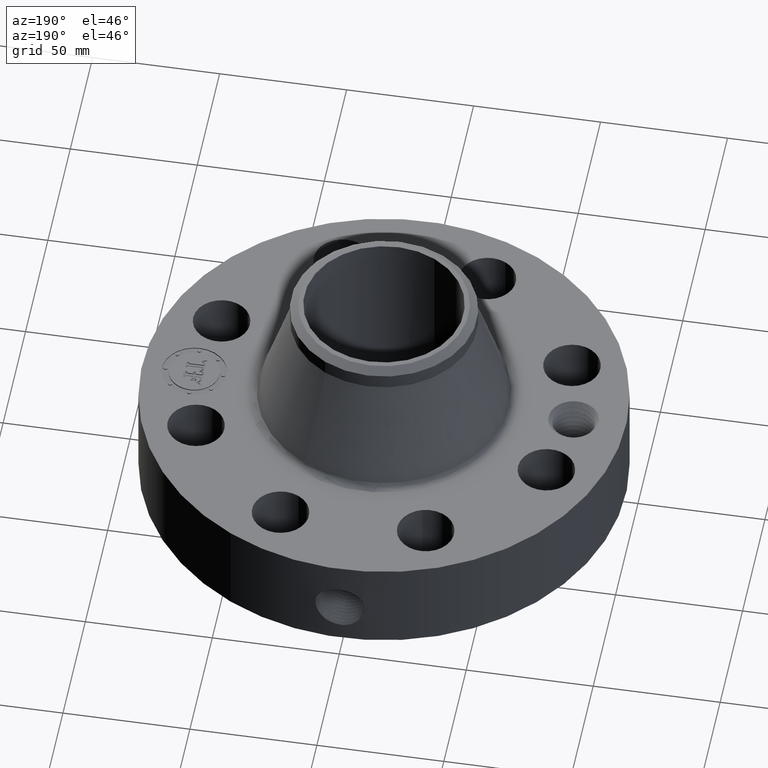
[diagram: clean part render]
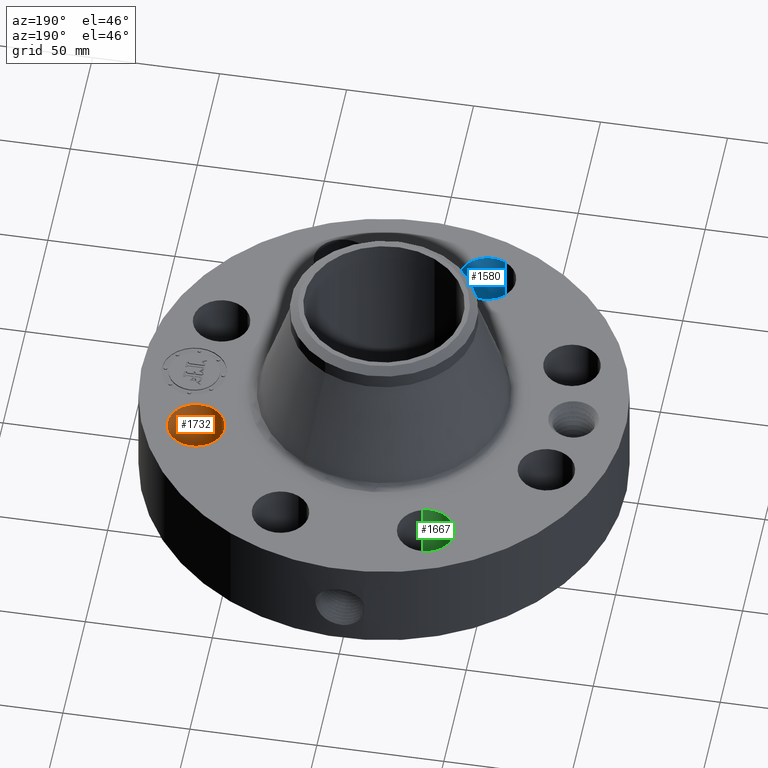
[diagram: same view with three faces highlighted in distinct colors, each labeled with its STEP entity id]
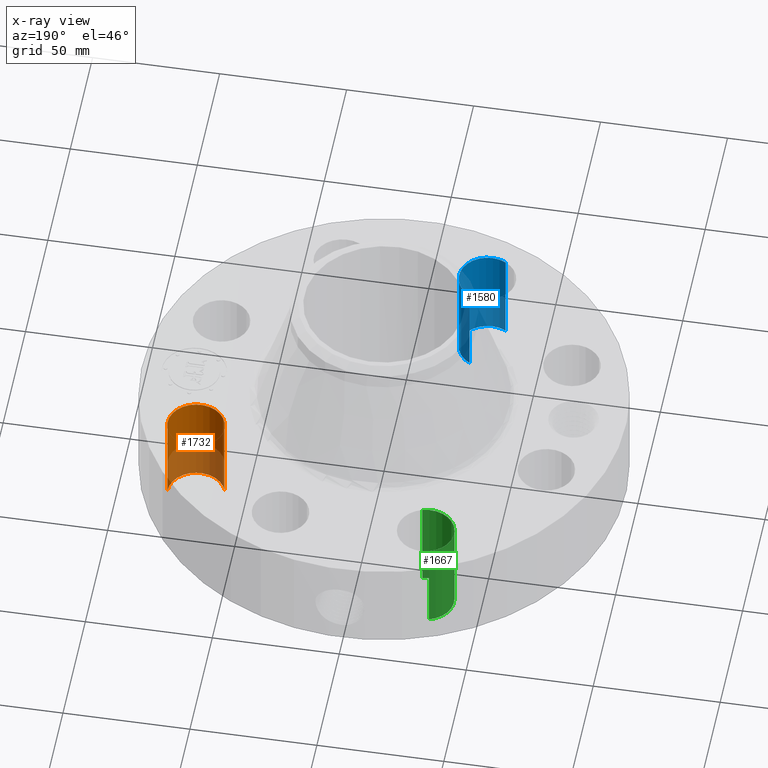
[diagram: x-ray of the same camera — body ghosted, the three highlighted faces saturated]
A machine part, auxiliary view with three faces highlighted in distinct colors.
The next image is the same camera in x-ray (body ghosted, the three faces saturated) — at least one of them is partly hidden behind the body in this view.
Their STEP definitions:

[orange] entity #1732 — the highlighted cylindrical surface (edge-blend (fillet) strip) has radius 11.176 mm, axis along (0, 0, -1).
#393=AXIS2_PLACEMENT_3D('Circle Axis2P3D',#391,#392,$) ;
#717=AXIS2_PLACEMENT_3D('Circle Axis2P3D',#715,#716,$) ;
#1707=AXIS2_PLACEMENT_3D('Cylinder Axis2P3D',#1704,#1705,#1706) ;
#386=CARTESIAN_POINT('Vertex',(2.2940039884,1.00121189745,0.250000000001)) ;
#388=CARTESIAN_POINT('Vertex',(3.13840766279,1.24896668486,0.250000000001)) ;
#391=CARTESIAN_POINT('Axis2P3D Location',(2.71620582559,1.12508929116,0.250000000001)) ;
#715=CARTESIAN_POINT('Axis2P3D Location',(2.71620582559,1.12508929116,1.75000000001)) ;
#719=CARTESIAN_POINT('Vertex',(3.13840766279,1.24896668486,1.75000000001)) ;
#721=CARTESIAN_POINT('Vertex',(2.2940039884,1.00121189745,1.75000000001)) ;
#1704=CARTESIAN_POINT('Axis2P3D Location',(2.71620582559,1.12508929116,1.74606299213)) ;
#1709=CARTESIAN_POINT('Line Origine',(2.2940039884,1.00121189745,1.)) ;
#1714=CARTESIAN_POINT('Line Origine',(3.13840766279,1.24896668486,1.)) ;
#392=DIRECTION('Axis2P3D Direction',(0.,0.,-0.0393700787402)) ;
#716=DIRECTION('Axis2P3D Direction',(0.,0.,-0.0393700787402)) ;
#1705=DIRECTION('Axis2P3D Direction',(0.,0.,-0.0393700787402)) ;
#1706=DIRECTION('Axis2P3D XDirection',(0.0377775444876,0.0110842335096,0.)) ;
#1710=DIRECTION('Vector Direction',(0.,0.,-0.0393700787402)) ;
#1715=DIRECTION('Vector Direction',(0.,0.,-0.0393700787402)) ;
#1711=VECTOR('Line Direction',#1710,0.0393700787402) ;
#1716=VECTOR('Line Direction',#1715,0.0393700787402) ;
#1727=ORIENTED_EDGE('',*,*,#1718,.F.) ;
#1728=ORIENTED_EDGE('',*,*,#395,.T.) ;
#1729=ORIENTED_EDGE('',*,*,#1713,.T.) ;
#1730=ORIENTED_EDGE('',*,*,#723,.F.) ;
#1732=ADVANCED_FACE('PartBody',(#1731),#1708,.F.) ;
#394=CIRCLE('generated circle',#393,0.440000000002) ;
#718=CIRCLE('generated circle',#717,0.440000000002) ;
#1708=CYLINDRICAL_SURFACE('generated cylinder',#1707,0.440000000002) ;
#395=EDGE_CURVE('',#389,#387,#394,.T.) ;
#723=EDGE_CURVE('',#720,#722,#718,.T.) ;
#1713=EDGE_CURVE('',#387,#722,#1712,.F.) ;
#1718=EDGE_CURVE('',#389,#720,#1717,.F.) ;
#1726=EDGE_LOOP('',(#1727,#1728,#1729,#1730)) ;
#1731=FACE_OUTER_BOUND('',#1726,.T.) ;
#1712=LINE('Line',#1709,#1711) ;
#1717=LINE('Line',#1714,#1716) ;
#387=VERTEX_POINT('',#386) ;
#389=VERTEX_POINT('',#388) ;
#720=VERTEX_POINT('',#719) ;
#722=VERTEX_POINT('',#721) ;

[blue] entity #1580 — the highlighted cylindrical surface (edge-blend (fillet) strip) has radius 11.176 mm, axis along (0, -0, -1).
#294=AXIS2_PLACEMENT_3D('Circle Axis2P3D',#292,#293,$) ;
#636=AXIS2_PLACEMENT_3D('Circle Axis2P3D',#634,#635,$) ;
#1562=AXIS2_PLACEMENT_3D('Cylinder Axis2P3D',#1559,#1560,#1561) ;
#292=CARTESIAN_POINT('Axis2P3D Location',(-1.12508929116,-2.71620582559,0.250000000001)) ;
#296=CARTESIAN_POINT('Vertex',(-0.914142054171,-2.33006949836,0.250000000001)) ;
#298=CARTESIAN_POINT('Vertex',(-1.33603652814,-3.10234215283,0.250000000001)) ;
#629=CARTESIAN_POINT('Vertex',(-1.33603652814,-3.10234215283,1.75000000001)) ;
#631=CARTESIAN_POINT('Vertex',(-0.914142054171,-2.33006949836,1.75000000001)) ;
#634=CARTESIAN_POINT('Axis2P3D Location',(-1.12508929116,-2.71620582559,1.75000000001)) ;
#1559=CARTESIAN_POINT('Axis2P3D Location',(-1.12508929116,-2.71620582559,1.74606299213)) ;
#1564=CARTESIAN_POINT('Line Origine',(-0.914142054171,-2.33006949836,1.)) ;
#1569=CARTESIAN_POINT('Line Origine',(-1.33603652814,-3.10234215283,1.)) ;
#293=DIRECTION('Axis2P3D Direction',(0.,0.,-0.0393700787402)) ;
#635=DIRECTION('Axis2P3D Direction',(0.,0.,-0.0393700787402)) ;
#1560=DIRECTION('Axis2P3D Direction',(0.,-0.,-0.0393700787402)) ;
#1561=DIRECTION('Axis2P3D XDirection',(-0.0188750212049,-0.0345504945626,0.)) ;
#1565=DIRECTION('Vector Direction',(0.,0.,-0.0393700787402)) ;
#1570=DIRECTION('Vector Direction',(0.,0.,-0.0393700787402)) ;
#1566=VECTOR('Line Direction',#1565,0.0393700787402) ;
#1571=VECTOR('Line Direction',#1570,0.0393700787402) ;
#1575=ORIENTED_EDGE('',*,*,#1568,.F.) ;
#1576=ORIENTED_EDGE('',*,*,#300,.T.) ;
#1577=ORIENTED_EDGE('',*,*,#1573,.T.) ;
#1578=ORIENTED_EDGE('',*,*,#638,.F.) ;
#1580=ADVANCED_FACE('PartBody',(#1579),#1563,.F.) ;
#295=CIRCLE('generated circle',#294,0.440000000002) ;
#637=CIRCLE('generated circle',#636,0.440000000002) ;
#1563=CYLINDRICAL_SURFACE('generated cylinder',#1562,0.440000000002) ;
#300=EDGE_CURVE('',#297,#299,#295,.T.) ;
#638=EDGE_CURVE('',#632,#630,#637,.T.) ;
#1568=EDGE_CURVE('',#297,#632,#1567,.F.) ;
#1573=EDGE_CURVE('',#299,#630,#1572,.F.) ;
#1574=EDGE_LOOP('',(#1575,#1576,#1577,#1578)) ;
#1579=FACE_OUTER_BOUND('',#1574,.T.) ;
#1567=LINE('Line',#1564,#1566) ;
#1572=LINE('Line',#1569,#1571) ;
#297=VERTEX_POINT('',#296) ;
#299=VERTEX_POINT('',#298) ;
#630=VERTEX_POINT('',#629) ;
#632=VERTEX_POINT('',#631) ;

[green] entity #1667 — the highlighted cylindrical surface (edge-blend (fillet) strip) has radius 11.176 mm, axis along (0, 0, -1).
#348=AXIS2_PLACEMENT_3D('Circle Axis2P3D',#346,#347,$) ;
#690=AXIS2_PLACEMENT_3D('Circle Axis2P3D',#688,#689,$) ;
#1649=AXIS2_PLACEMENT_3D('Cylinder Axis2P3D',#1646,#1647,#1648) ;
#346=CARTESIAN_POINT('Axis2P3D Location',(-1.12508929116,2.71620582559,0.250000000001)) ;
#350=CARTESIAN_POINT('Vertex',(-1.00121189745,2.2940039884,0.250000000001)) ;
#352=CARTESIAN_POINT('Vertex',(-1.24896668486,3.13840766279,0.250000000001)) ;
#683=CARTESIAN_POINT('Vertex',(-1.24896668486,3.13840766279,1.75000000001)) ;
#685=CARTESIAN_POINT('Vertex',(-1.00121189745,2.2940039884,1.75000000001)) ;
#688=CARTESIAN_POINT('Axis2P3D Location',(-1.12508929116,2.71620582559,1.75000000001)) ;
#1646=CARTESIAN_POINT('Axis2P3D Location',(-1.12508929116,2.71620582559,1.74606299213)) ;
#1651=CARTESIAN_POINT('Line Origine',(-1.00121189745,2.2940039884,1.)) ;
#1656=CARTESIAN_POINT('Line Origine',(-1.24896668486,3.13840766279,1.)) ;
#347=DIRECTION('Axis2P3D Direction',(0.,0.,-0.0393700787402)) ;
#689=DIRECTION('Axis2P3D Direction',(0.,0.,-0.0393700787402)) ;
#1647=DIRECTION('Axis2P3D Direction',(0.,0.,-0.0393700787402)) ;
#1648=DIRECTION('Axis2P3D XDirection',(-0.0110842335096,0.0377775444876,0.)) ;
#1652=DIRECTION('Vector Direction',(0.,0.,-0.0393700787402)) ;
#1657=DIRECTION('Vector Direction',(0.,0.,-0.0393700787402)) ;
#1653=VECTOR('Line Direction',#1652,0.0393700787402) ;
#1658=VECTOR('Line Direction',#1657,0.0393700787402) ;
#1662=ORIENTED_EDGE('',*,*,#1655,.F.) ;
#1663=ORIENTED_EDGE('',*,*,#354,.T.) ;
#1664=ORIENTED_EDGE('',*,*,#1660,.T.) ;
#1665=ORIENTED_EDGE('',*,*,#692,.F.) ;
#1667=ADVANCED_FACE('PartBody',(#1666),#1650,.F.) ;
#349=CIRCLE('generated circle',#348,0.440000000002) ;
#691=CIRCLE('generated circle',#690,0.440000000002) ;
#1650=CYLINDRICAL_SURFACE('generated cylinder',#1649,0.440000000002) ;
#354=EDGE_CURVE('',#351,#353,#349,.T.) ;
#692=EDGE_CURVE('',#686,#684,#691,.T.) ;
#1655=EDGE_CURVE('',#351,#686,#1654,.F.) ;
#1660=EDGE_CURVE('',#353,#684,#1659,.F.) ;
#1661=EDGE_LOOP('',(#1662,#1663,#1664,#1665)) ;
#1666=FACE_OUTER_BOUND('',#1661,.T.) ;
#1654=LINE('Line',#1651,#1653) ;
#1659=LINE('Line',#1656,#1658) ;
#351=VERTEX_POINT('',#350) ;
#353=VERTEX_POINT('',#352) ;
#684=VERTEX_POINT('',#683) ;
#686=VERTEX_POINT('',#685) ;